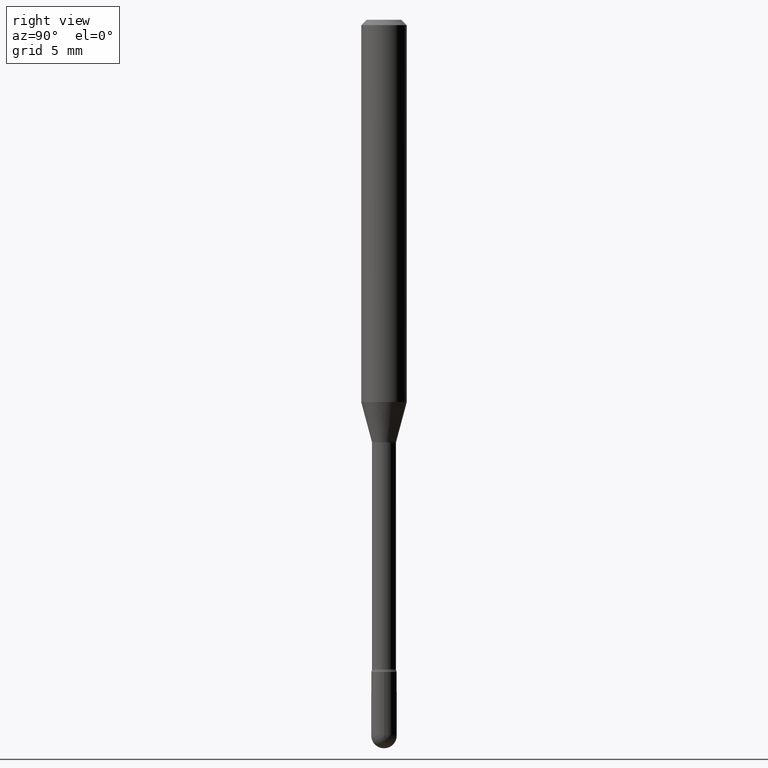
[diagram: clean part render]
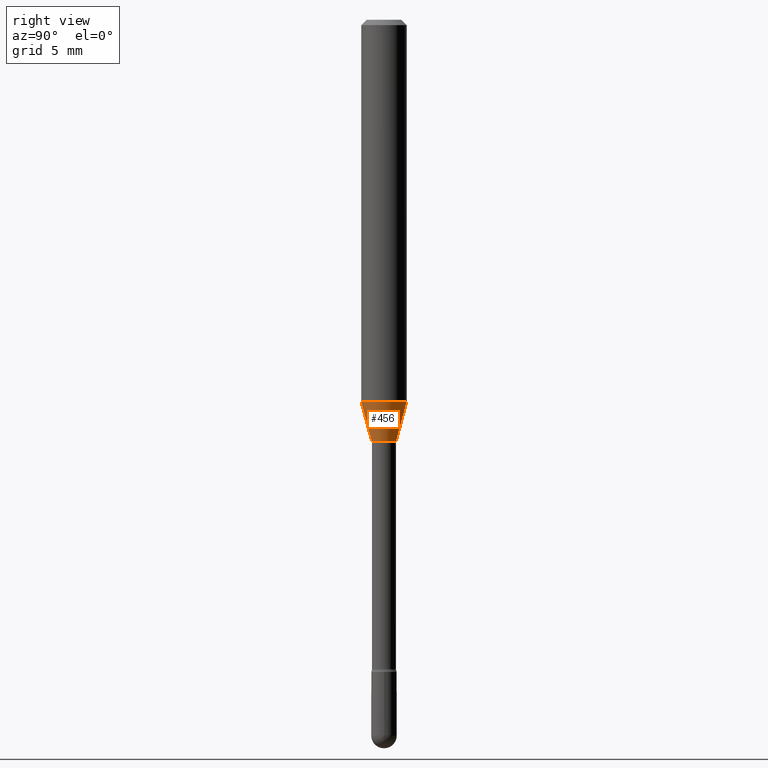
[diagram: same view with one face highlighted and labeled with its STEP entity id]
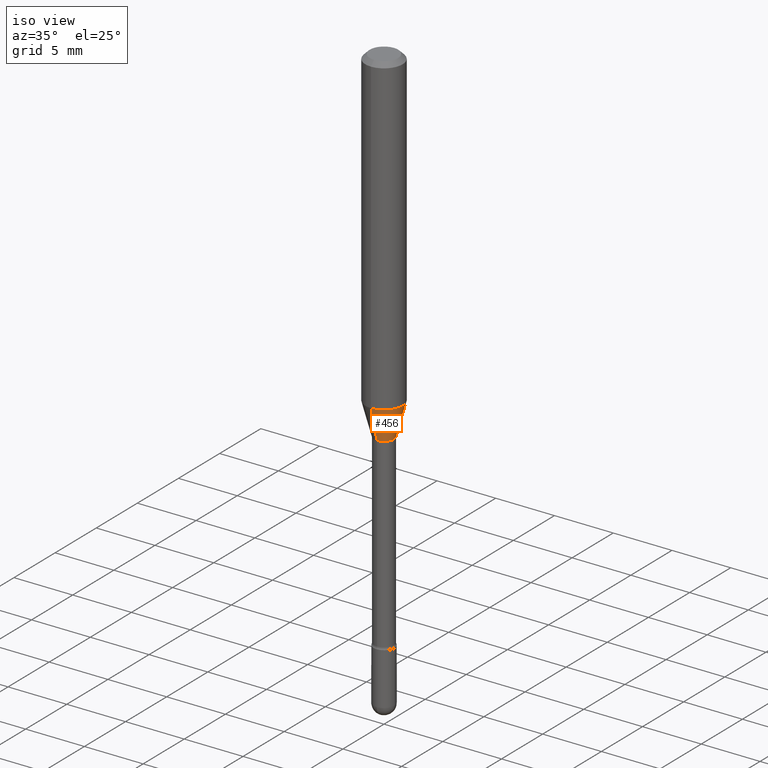
[diagram: same view with one face highlighted and labeled with its STEP entity id]
A machine part, right view. The second image highlights one B-rep face of the part: STEP entity #456.
A second angle (iso view) of the same face is appended — the face is thin or edge-on in the first view.
In plain terms, the highlighted conical surface has half-angle 15 deg.
Its self-contained STEP definition (entity closure, byte-faithful):
#1 = CARTESIAN_POINT ( 'NONE',  ( 2.374002335562008662E-16, 0.03341111260565993862, -1.158092501787273187 ) ) ;
#52 = VERTEX_POINT ( 'NONE', #474 ) ;
#59 = DIRECTION ( 'NONE',  ( -6.982962677686266711E-15, -1.000000000000000000, 4.088232597799137334E-15 ) ) ;
#63 = DIRECTION ( 'NONE',  ( 1.839019923739594793E-15, 0.2588190451025241812, 0.9659258262890673130 ) ) ;
#83 = VERTEX_POINT ( 'NONE', #335 ) ;
#87 = EDGE_CURVE ( 'NONE', #52, #289, #377, .T. ) ;
#88 = ORIENTED_EDGE ( 'NONE', *, *, #153, .T. ) ;
#119 = CARTESIAN_POINT ( 'NONE',  ( -2.333085523452963922E-16, -0.03341111260566802243, -1.158092501787272965 ) ) ;
#121 = DIRECTION ( 'NONE',  ( -6.982962677686265922E-15, -1.000000000000000000, 4.370956789862821150E-15 ) ) ;
#128 = CONICAL_SURFACE ( 'NONE', #370, 0.03341111260566398400, 0.2617993877991495189 ) ;
#150 = AXIS2_PLACEMENT_3D ( 'NONE', #295, #550, #121 ) ;
#153 = EDGE_CURVE ( 'NONE', #83, #289, #234, .T. ) ;
#171 = DIRECTION ( 'NONE',  ( -1.807323732225324617E-15, -0.2588190451025174088, 0.9659258262890690894 ) ) ;
#173 = CARTESIAN_POINT ( 'NONE',  ( -2.333085523452963922E-16, -0.03341111260566802243, -1.158092501787272965 ) ) ;
#211 = CARTESIAN_POINT ( 'NONE',  ( 2.832112530484573364E-29, -4.043410466813366277E-15, -1.158092501787272965 ) ) ;
#215 = VECTOR ( 'NONE', #63, 39.37007874015748854 ) ;
#217 = FACE_OUTER_BOUND ( 'NONE', #255, .T. ) ;
#234 = LINE ( 'NONE', #1, #215 ) ;
#237 = AXIS2_PLACEMENT_3D ( 'NONE', #211, #373, #59 ) ;
#255 = EDGE_LOOP ( 'NONE', ( #498, #88, #488, #454 ) ) ;
#289 = VERTEX_POINT ( 'NONE', #347 ) ;
#295 = CARTESIAN_POINT ( 'NONE',  ( 2.566626353440528363E-29, -3.664375532466852274E-15, -1.049531296095961297 ) ) ;
#314 = EDGE_CURVE ( 'NONE', #428, #52, #505, .T. ) ;
#329 = DIRECTION ( 'NONE',  ( -2.445497683573463397E-29, 3.491439984779462686E-15, 1.000000000000000000 ) ) ;
#335 = CARTESIAN_POINT ( 'NONE',  ( 3.407447217031446095E-16, 0.03341111260565993862, -1.158092501787273187 ) ) ;
#338 = EDGE_CURVE ( 'NONE', #428, #83, #475, .T. ) ;
#347 = CARTESIAN_POINT ( 'NONE',  ( 4.440892098500882541E-16, 0.06249999999999634320, -1.049531296095961519 ) ) ;
#370 = AXIS2_PLACEMENT_3D ( 'NONE', #553, #329, #491 ) ;
#373 = DIRECTION ( 'NONE',  ( -2.445497683573463397E-29, 3.491439984779462686E-15, 1.000000000000000000 ) ) ;
#377 = CIRCLE ( 'NONE', #150, 0.06250000000000000000 ) ;
#401 = VECTOR ( 'NONE', #171, 39.37007874015748854 ) ;
#428 = VERTEX_POINT ( 'NONE', #173 ) ;
#454 = ORIENTED_EDGE ( 'NONE', *, *, #314, .F. ) ;
#456 = ADVANCED_FACE ( 'NONE', ( #217 ), #128, .T. ) ;
#474 = CARTESIAN_POINT ( 'NONE',  ( -4.364351673553658835E-16, -0.06250000000000366374, -1.049531296095960853 ) ) ;
#475 = CIRCLE ( 'NONE', #237, 0.03341111260566398400 ) ;
#488 = ORIENTED_EDGE ( 'NONE', *, *, #87, .F. ) ;
#491 = DIRECTION ( 'NONE',  ( -6.982962677686266711E-15, -1.000000000000000000, 4.088232597799137334E-15 ) ) ;
#498 = ORIENTED_EDGE ( 'NONE', *, *, #338, .T. ) ;
#505 = LINE ( 'NONE', #119, #401 ) ;
#550 = DIRECTION ( 'NONE',  ( -2.445497683573463397E-29, 3.491439984779462686E-15, 1.000000000000000000 ) ) ;
#553 = CARTESIAN_POINT ( 'NONE',  ( 2.832112530484573364E-29, -4.043410466813366277E-15, -1.158092501787272965 ) ) ;